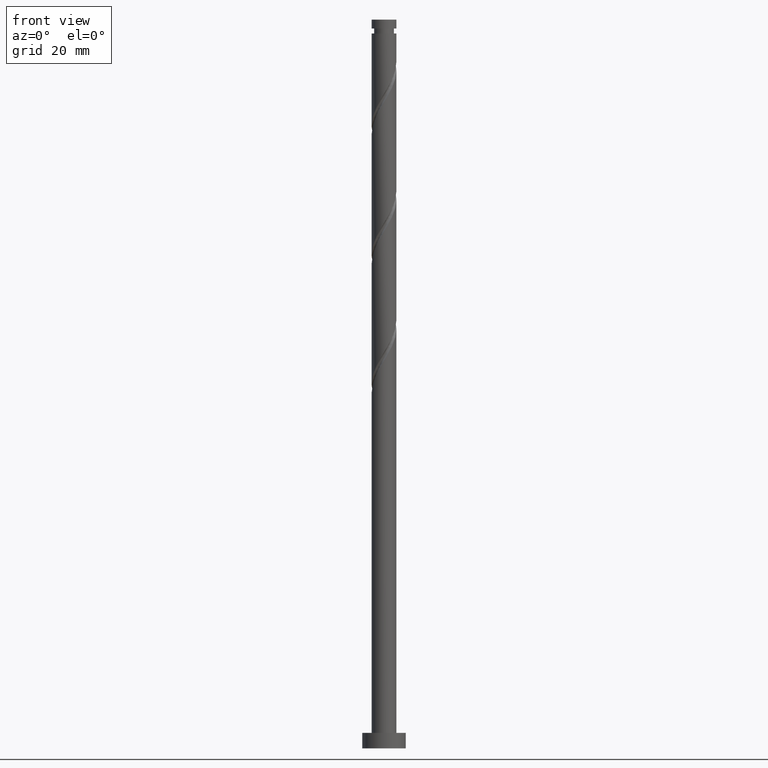
[diagram: clean part render]
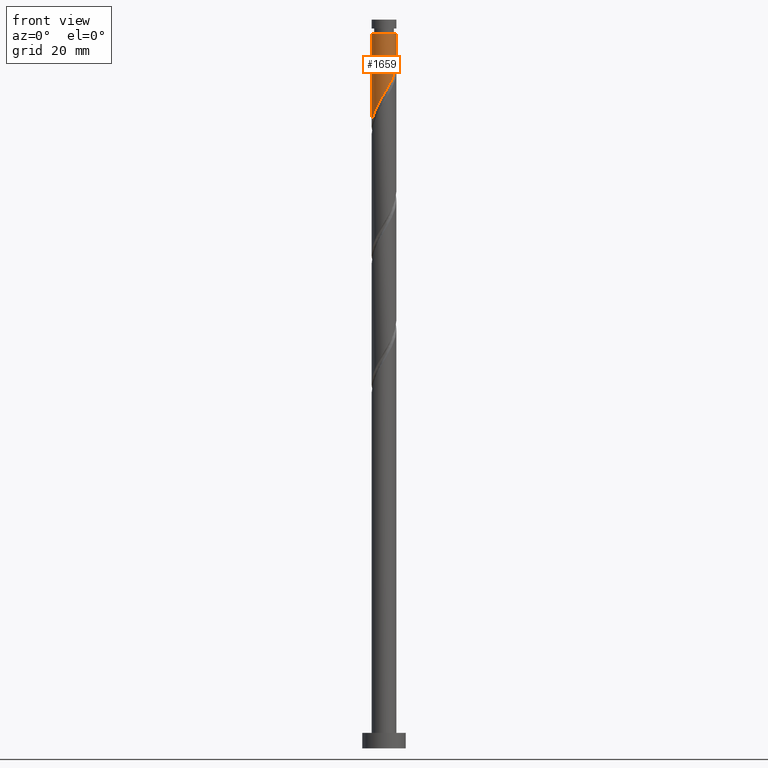
[diagram: same view with one face highlighted and labeled with its STEP entity id]
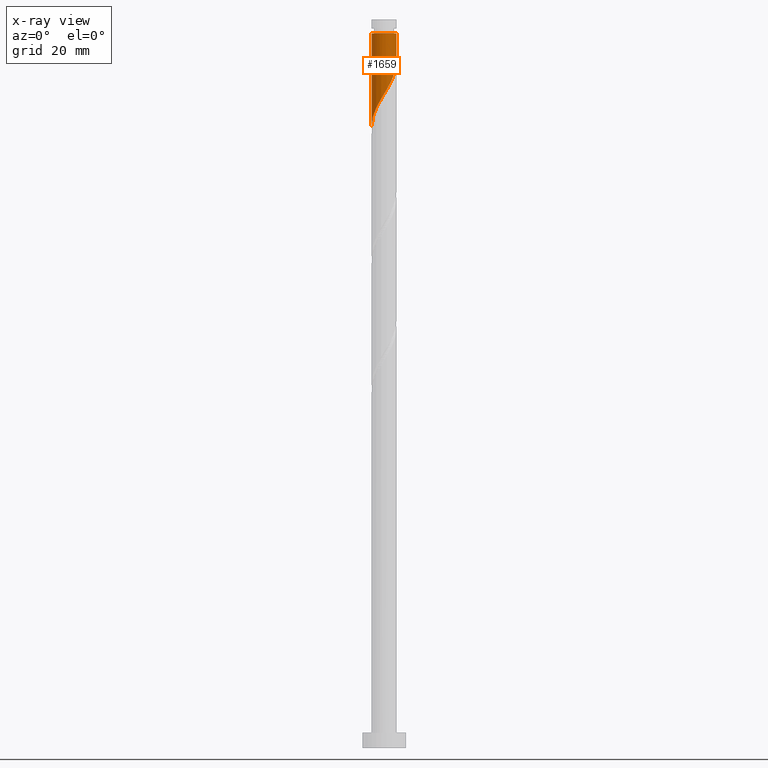
[diagram: x-ray of the same camera — body ghosted, the highlighted face saturated]
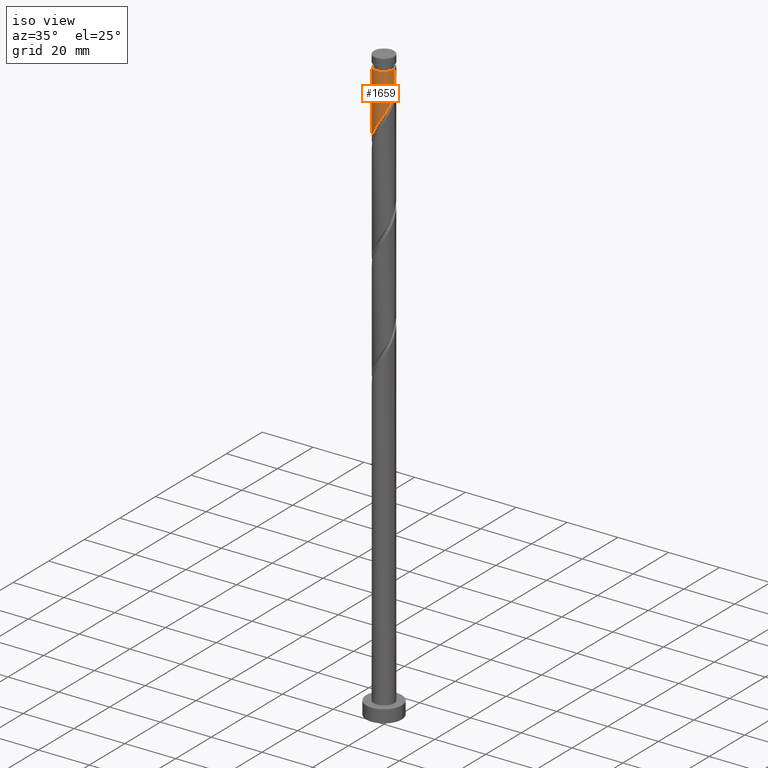
[diagram: same view with one face highlighted and labeled with its STEP entity id]
A machine part, front view. The second image highlights one B-rep face of the part: STEP entity #1659.
The next image is the same camera in x-ray: the body ghosted, the highlighted face saturated — about 0% of this face is hidden behind the body in this view.
A second angle (iso view) of the same face is appended — the face is thin or edge-on in the first view.
In plain terms, the highlighted cylindrical surface (edge-blend (fillet) strip) has radius 4 mm, axis along (-0, -0, -1).
Its self-contained STEP definition (entity closure, byte-faithful):
#41 = CARTESIAN_POINT ( 'NONE',  ( 1.583270747538797707, -3.705286292331802400, 213.6962120339631497 ) ) ;
#49 = CARTESIAN_POINT ( 'NONE',  ( -2.149990540898524927, -3.407848799785708760, 207.2859556237067409 ) ) ;
#59 = CARTESIAN_POINT ( 'NONE',  ( 2.003633787528294796, -3.462001104198988877, 214.4974940852453074 ) ) ;
#140 = CARTESIAN_POINT ( 'NONE',  ( 3.999999999999998224, 2.363038288259307561E-15, 221.4343903201115609 ) ) ;
#174 = CARTESIAN_POINT ( 'NONE',  ( -0.7959899496852996803, -3.919999999999998153, 209.6898017775530718 ) ) ;
#184 = CARTESIAN_POINT ( 'NONE',  ( -3.999999999999984457, 0.000000000000000000, 230.5231351108863294 ) ) ;
#194 = CARTESIAN_POINT ( 'NONE',  ( 3.123849022751419291, -2.545085470315097353, 216.9013402390914109 ) ) ;
#203 = CARTESIAN_POINT ( 'NONE',  ( 3.642154467511929283, -1.723543908038582817, 218.5039043416554989 ) ) ;
#205 = FACE_OUTER_BOUND ( 'NONE', #981, .T. ) ;
#318 = CARTESIAN_POINT ( 'NONE',  ( 3.795472800412702075, -1.262690073346327768, 219.3051863929375997 ) ) ;
#344 = CYLINDRICAL_SURFACE ( 'NONE', #1379, 4.000000000000000000 ) ;
#351 = CARTESIAN_POINT ( 'NONE',  ( 3.999999999999998224, 2.363038288259307561E-15, 221.4343903201115609 ) ) ;
#381 = ORIENTED_EDGE ( 'NONE', *, *, #1332, .T. ) ;
#385 = EDGE_CURVE ( 'NONE', #525, #806, #1506, .T. ) ;
#486 = CARTESIAN_POINT ( 'NONE',  ( -4.000000000000000000, -3.933411834254417401E-15, 200.6010569867782181 ) ) ;
#525 = VERTEX_POINT ( 'NONE', #351 ) ;
#526 = DIRECTION ( 'NONE',  ( -0.000000000000000000, -0.000000000000000000, -1.000000000000000000 ) ) ;
#588 = CARTESIAN_POINT ( 'NONE',  ( 4.000000000000000000, -0.1590925213470687216, 221.1702194044786154 ) ) ;
#615 = CARTESIAN_POINT ( 'NONE',  ( 3.987364772516037270, -0.3176825001445965913, 220.9077504955017162 ) ) ;
#627 = CARTESIAN_POINT ( 'NONE',  ( -0.3200157754540387534, -4.016650678315774492, 210.4910838288350021 ) ) ;
#629 = CARTESIAN_POINT ( 'NONE',  ( 0.000000000000000000, 0.000000000000000000, 235.0000000000000284 ) ) ;
#639 = CARTESIAN_POINT ( 'NONE',  ( -1.271964123916561551, -3.823349321684220925, 208.8885197262708857 ) ) ;
#675 = LINE ( 'NONE', #1478, #719 ) ;
#691 = CIRCLE ( 'NONE', #1716, 3.999999999999984457 ) ;
#719 = VECTOR ( 'NONE', #526, 1000.000000000000000 ) ;
#738 = CARTESIAN_POINT ( 'NONE',  ( 2.773922925134606920, -2.881900693190635021, 216.1000581878093953 ) ) ;
#748 = CARTESIAN_POINT ( 'NONE',  ( -4.000000000000000888, -0.3250257541481718082, 201.1407577241265017 ) ) ;
#771 = CARTESIAN_POINT ( 'NONE',  ( -1.710977332407543017, -3.615599060734964176, 208.0872376749888986 ) ) ;
#781 = CARTESIAN_POINT ( 'NONE',  ( 0.1652574756069088158, -3.996584787885279599, 211.2923658801170745 ) ) ;
#806 = VERTEX_POINT ( 'NONE', #997 ) ;
#826 = LINE ( 'NONE', #995, #1541 ) ;
#879 = CARTESIAN_POINT ( 'NONE',  ( -2.903067322541106332, -2.794296492670029775, 205.6833915211427097 ) ) ;
#890 = CARTESIAN_POINT ( 'NONE',  ( 2.423996827517791885, -3.218715916066174021, 215.2987761365273229 ) ) ;
#915 = CARTESIAN_POINT ( 'NONE',  ( -3.678270583471656696, -1.571726921181625158, 203.2795453672965493 ) ) ;
#981 = EDGE_LOOP ( 'NONE', ( #1731, #381, #1016, #1756 ) ) ;
#995 = CARTESIAN_POINT ( 'NONE',  ( -4.000000000000000000, 0.000000000000000000, 235.0000000000000284 ) ) ;
#997 = CARTESIAN_POINT ( 'NONE',  ( -4.000000000000000000, -3.933411834254417401E-15, 200.6010569867782181 ) ) ;
#1016 = ORIENTED_EDGE ( 'NONE', *, *, #1385, .T. ) ;
#1073 = CARTESIAN_POINT ( 'NONE',  ( 1.116900737103328378, -3.840902594893293109, 212.8949299826812194 ) ) ;
#1093 = VERTEX_POINT ( 'NONE', #184 ) ;
#1117 = EDGE_CURVE ( 'NONE', #1153, #525, #675, .T. ) ;
#1141 = DIRECTION ( 'NONE',  ( -0.000000000000000000, -0.000000000000000000, -1.000000000000000000 ) ) ;
#1153 = VERTEX_POINT ( 'NONE', #1537 ) ;
#1180 = CARTESIAN_POINT ( 'NONE',  ( -2.526528931719815851, -3.101072646227869267, 206.4846735724247537 ) ) ;
#1193 = CARTESIAN_POINT ( 'NONE',  ( -3.195247853079536959, -2.406323161462442073, 204.8821094698607226 ) ) ;
#1332 = EDGE_CURVE ( 'NONE', #1153, #1093, #691, .T. ) ;
#1342 = CARTESIAN_POINT ( 'NONE',  ( -3.947525597521974294, -0.6457876252366374636, 201.6769812647324613 ) ) ;
#1379 = AXIS2_PLACEMENT_3D ( 'NONE', #629, #1613, #1737 ) ;
#1385 = EDGE_CURVE ( 'NONE', #1093, #806, #826, .T. ) ;
#1451 = CARTESIAN_POINT ( 'NONE',  ( 0.6505307266678563849, -3.976518897454783374, 212.0936479313991185 ) ) ;
#1465 = CARTESIAN_POINT ( 'NONE',  ( -3.869112783325347138, -1.125104012108395279, 202.4782633160145053 ) ) ;
#1473 = CARTESIAN_POINT ( 'NONE',  ( 3.948791133313475754, -0.8018362386540693887, 220.1064684442196153 ) ) ;
#1478 = CARTESIAN_POINT ( 'NONE',  ( 4.000000000000000000, 4.898587196589412829E-16, 235.0000000000000284 ) ) ;
#1506 =( BOUNDED_CURVE ( )  B_SPLINE_CURVE ( 2, ( #140, #588, #615, #1473, #318, #203, #1580, #194, #738, #890, #59, #41, #1073, #1451, #781, #627, #174, #639, #771, #49, #1180, #879, #1193, #1746, #915, #1465, #1342, #748, #486 ),
 .UNSPECIFIED., .F., .T. ) 
 B_SPLINE_CURVE_WITH_KNOTS ( ( 3, 2, 2, 2, 2, 2, 2, 2, 2, 2, 2, 2, 2, 2, 3 ),
 ( 0.3045271625973831053, 0.3076923076923077094, 0.3173076923076922906, 0.3269230769230769273, 0.3365384615384615641, 0.3461538461538461453, 0.3557692307692307820, 0.3653846153846153633, 0.3750000000000000000, 0.3846153846153846367, 0.3942307692307692180, 0.4038461538461538547, 0.4134615384615384359, 0.4230769230769230727, 0.4295271625973834384 ),
 .UNSPECIFIED. ) 
 CURVE ( )  GEOMETRIC_REPRESENTATION_ITEM ( )  RATIONAL_B_SPLINE_CURVE ( ( 0.9061636035682785195, 0.9069090390690671688, 0.9090909090909238266, 0.9024626128164274785, 0.9090909090909238266, 0.9024626128164274785, 0.9090909090909238266, 0.9024626128164274785, 0.9090909090909238266, 0.9024626128164274785, 0.9090909090909238266, 0.9024626128164274785, 0.9090909090909238266, 0.9024626128164274785, 0.9090909090909238266, 0.9024626128164274785, 0.9090909090909238266, 0.9024626128164274785, 0.9090909090909238266, 0.9024626128164274785, 0.9090909090909238266, 0.9024626128164274785, 0.9090909090909238266, 0.9024626128164274785, 0.9090909090909238266, 0.9024626128164274785, 0.9090909090909238266, 0.9046444828382839143, 0.9061636035682787416 ) ) 
 REPRESENTATION_ITEM ( '' )  );
#1537 = CARTESIAN_POINT ( 'NONE',  ( 3.999999999999984457, 4.898587196589402968E-16, 230.5231351108863294 ) ) ;
#1541 = VECTOR ( 'NONE', #1141, 1000.000000000000000 ) ;
#1580 = CARTESIAN_POINT ( 'NONE',  ( 3.383001745131675175, -2.134314689176841195, 217.7026222903734833 ) ) ;
#1613 = DIRECTION ( 'NONE',  ( -0.000000000000000000, -0.000000000000000000, -1.000000000000000000 ) ) ;
#1659 = ADVANCED_FACE ( 'NONE', ( #205 ), #344, .T. ) ;
#1675 = DIRECTION ( 'NONE',  ( -1.000000000000000000, 0.000000000000000000, 0.000000000000000000 ) ) ;
#1684 = DIRECTION ( 'NONE',  ( -0.000000000000000000, -0.000000000000000000, -1.000000000000000000 ) ) ;
#1716 = AXIS2_PLACEMENT_3D ( 'NONE', #1817, #1684, #1675 ) ;
#1731 = ORIENTED_EDGE ( 'NONE', *, *, #1117, .F. ) ;
#1737 = DIRECTION ( 'NONE',  ( -1.000000000000000000, 0.000000000000000000, 0.000000000000000000 ) ) ;
#1746 = CARTESIAN_POINT ( 'NONE',  ( -3.487428383617966698, -2.018349830254853483, 204.0808274185785933 ) ) ;
#1756 = ORIENTED_EDGE ( 'NONE', *, *, #385, .F. ) ;
#1817 = CARTESIAN_POINT ( 'NONE',  ( 0.000000000000000000, 0.000000000000000000, 230.5231351108863294 ) ) ;